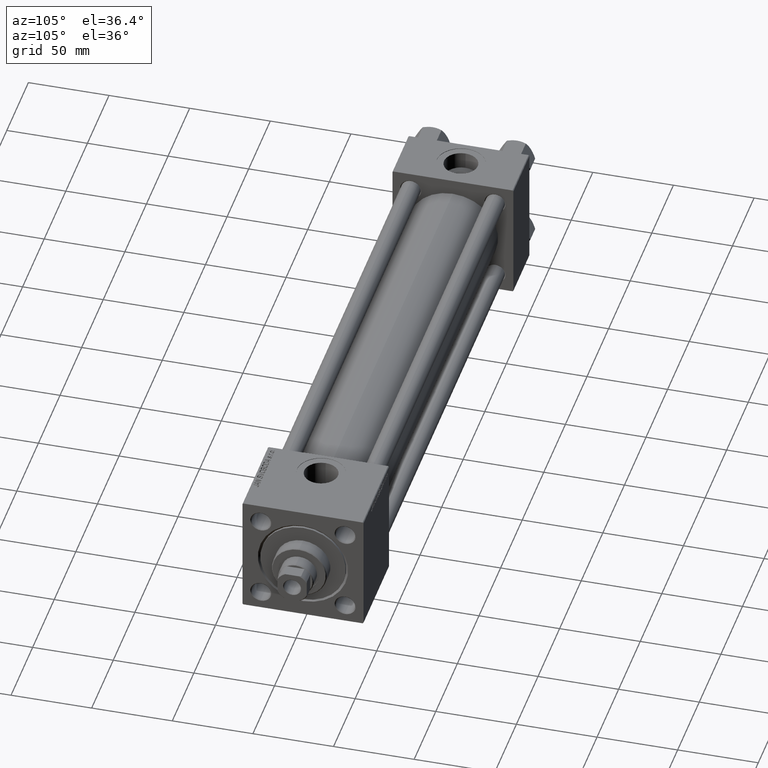
[diagram: clean part render]
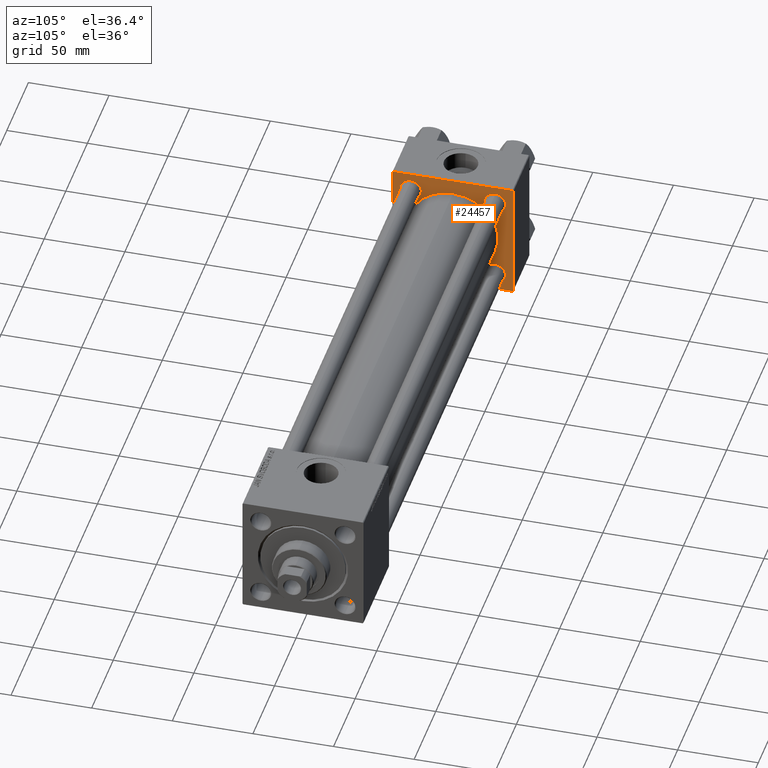
[diagram: same view with one face highlighted and labeled with its STEP entity id]
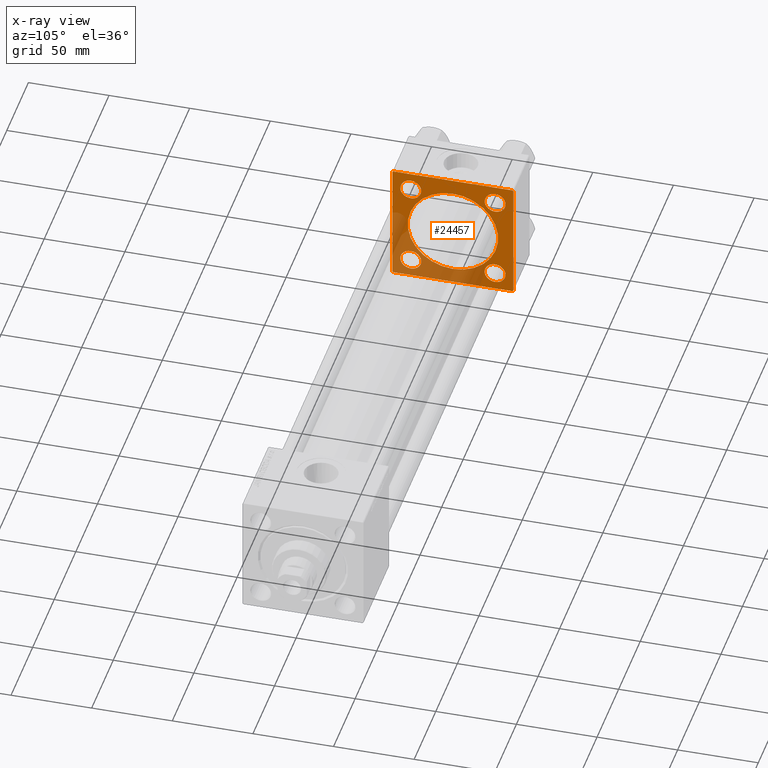
[diagram: x-ray of the same camera — body ghosted, the highlighted face saturated]
A machine part, auxiliary view. The second image highlights one B-rep face of the part: STEP entity #24457.
The next image is the same camera in x-ray: the body ghosted, the highlighted face saturated — about 35% of this face is hidden behind the body in this view.
In plain terms, the highlighted planar face has unit normal (-1, 0, 0).
Its self-contained STEP definition (entity closure, byte-faithful):
#606 = CARTESIAN_POINT ( 'NONE',  ( 37.00000000000000000, -26.14999999999999147, 19.64999999999994529 ) ) ;
#1103 = CARTESIAN_POINT ( 'NONE',  ( 37.00000000000000000, 26.14999999999999858, 26.15000000000000213 ) ) ;
#1285 = VECTOR ( 'NONE', #18020, 1000.000000000000114 ) ;
#1416 = VERTEX_POINT ( 'NONE', #9178 ) ;
#1596 = DIRECTION ( 'NONE',  ( -1.000000000000000000, 0.000000000000000000, -0.000000000000000000 ) ) ;
#2015 = EDGE_CURVE ( 'NONE', #1416, #37806, #27989, .T. ) ;
#3203 = CARTESIAN_POINT ( 'NONE',  ( 37.00000000000000000, 37.49999999999999289, -36.99999999999998579 ) ) ;
#3230 = EDGE_CURVE ( 'NONE', #26036, #39891, #6932, .T. ) ;
#3838 = CARTESIAN_POINT ( 'NONE',  ( 37.00000000000000000, 36.99999999999997868, -37.50000000000000000 ) ) ;
#3963 = AXIS2_PLACEMENT_3D ( 'NONE', #15415, #23784, #47112 ) ;
#4054 = CARTESIAN_POINT ( 'NONE',  ( 37.00000000000000000, -26.14999999999999147, 32.65000000000007674 ) ) ;
#4691 = DIRECTION ( 'NONE',  ( -0.000000000000000000, -0.7071067811865474617, -0.7071067811865474617 ) ) ;
#5216 = FACE_BOUND ( 'NONE', #41043, .T. ) ;
#5966 = CARTESIAN_POINT ( 'NONE',  ( 37.00000000000000000, 0.000000000000000000, 0.000000000000000000 ) ) ;
#6260 = DIRECTION ( 'NONE',  ( -1.000000000000000000, 0.000000000000000000, -0.000000000000000000 ) ) ;
#6673 = LINE ( 'NONE', #23143, #9299 ) ;
#6675 = ORIENTED_EDGE ( 'NONE', *, *, #46913, .T. ) ;
#6932 = CIRCLE ( 'NONE', #15852, 6.500000000000057732 ) ;
#6994 = CARTESIAN_POINT ( 'NONE',  ( 36.99999999999997868, 8.269258236473784371E-16, -28.00000000000000000 ) ) ;
#7247 = DIRECTION ( 'NONE',  ( 1.000000000000000000, -0.000000000000000000, 0.000000000000000000 ) ) ;
#7453 = DIRECTION ( 'NONE',  ( -1.000000000000000000, 0.000000000000000000, -0.000000000000000000 ) ) ;
#8074 = CIRCLE ( 'NONE', #16187, 6.500000000000119904 ) ;
#8188 = CARTESIAN_POINT ( 'NONE',  ( 37.00000000000000000, 26.14999999999999858, -26.15000000000000213 ) ) ;
#8709 = VERTEX_POINT ( 'NONE', #32899 ) ;
#8759 = AXIS2_PLACEMENT_3D ( 'NONE', #36971, #6260, #18149 ) ;
#8943 = ORIENTED_EDGE ( 'NONE', *, *, #2015, .T. ) ;
#9178 = CARTESIAN_POINT ( 'NONE',  ( 37.00000000000000000, 26.14999999999999858, -32.65000000000011937 ) ) ;
#9207 = ORIENTED_EDGE ( 'NONE', *, *, #46489, .T. ) ;
#9276 = FACE_BOUND ( 'NONE', #24774, .T. ) ;
#9299 = VECTOR ( 'NONE', #33813, 1000.000000000000000 ) ;
#9596 = CIRCLE ( 'NONE', #14461, 28.00000000000000000 ) ;
#9935 = ORIENTED_EDGE ( 'NONE', *, *, #34379, .T. ) ;
#10269 = VERTEX_POINT ( 'NONE', #23363 ) ;
#10638 = AXIS2_PLACEMENT_3D ( 'NONE', #45746, #7453, #46006 ) ;
#10677 = CARTESIAN_POINT ( 'NONE',  ( 37.00000000000000000, 36.99999999999999289, 37.50000000000000000 ) ) ;
#10898 = CARTESIAN_POINT ( 'NONE',  ( 37.00000000000000000, -26.14999999999999147, -32.65000000000006963 ) ) ;
#11398 = AXIS2_PLACEMENT_3D ( 'NONE', #24240, #25233, #17374 ) ;
#11760 = VERTEX_POINT ( 'NONE', #4054 ) ;
#11790 = CARTESIAN_POINT ( 'NONE',  ( 37.00000000000000000, 26.14999999999999858, -19.64999999999988844 ) ) ;
#11870 = ORIENTED_EDGE ( 'NONE', *, *, #31811, .F. ) ;
#12331 = VERTEX_POINT ( 'NONE', #606 ) ;
#12726 = EDGE_CURVE ( 'NONE', #12331, #11760, #29001, .T. ) ;
#12812 = LINE ( 'NONE', #31578, #19402 ) ;
#13056 = ORIENTED_EDGE ( 'NONE', *, *, #30795, .T. ) ;
#13109 = EDGE_CURVE ( 'NONE', #11760, #12331, #46004, .T. ) ;
#13265 = VERTEX_POINT ( 'NONE', #6994 ) ;
#13294 = EDGE_CURVE ( 'NONE', #13265, #36116, #9596, .T. ) ;
#13333 = PLANE ( 'NONE',  #48383 ) ;
#13500 = ORIENTED_EDGE ( 'NONE', *, *, #13294, .F. ) ;
#13592 = CARTESIAN_POINT ( 'NONE',  ( 37.00000000000000000, 37.49999999999999289, -36.99999999999998579 ) ) ;
#13625 = LINE ( 'NONE', #24538, #42136 ) ;
#14352 = EDGE_CURVE ( 'NONE', #37806, #1416, #32341, .T. ) ;
#14461 = AXIS2_PLACEMENT_3D ( 'NONE', #22215, #7247, #18909 ) ;
#14584 = CARTESIAN_POINT ( 'NONE',  ( 37.00000000000000000, -37.00000000000002132, -37.50000000000000711 ) ) ;
#15349 = ORIENTED_EDGE ( 'NONE', *, *, #34684, .F. ) ;
#15415 = CARTESIAN_POINT ( 'NONE',  ( 37.00000000000000000, 26.14999999999999858, -26.15000000000000213 ) ) ;
#15852 = AXIS2_PLACEMENT_3D ( 'NONE', #33063, #1596, #36639 ) ;
#15922 = CARTESIAN_POINT ( 'NONE',  ( 37.00000000000000000, -37.50000000000000000, -37.00000000000003553 ) ) ;
#16187 = AXIS2_PLACEMENT_3D ( 'NONE', #1103, #23965, #20674 ) ;
#17374 = DIRECTION ( 'NONE',  ( 0.000000000000000000, 0.000000000000000000, 1.000000000000000000 ) ) ;
#18020 = DIRECTION ( 'NONE',  ( 0.000000000000000000, -0.7071067811865474617, 0.7071067811865474617 ) ) ;
#18149 = DIRECTION ( 'NONE',  ( 0.000000000000000000, 0.000000000000000000, 1.000000000000000000 ) ) ;
#18288 = CARTESIAN_POINT ( 'NONE',  ( 37.00000000000000000, 37.49999999999999289, 37.00000000000000000 ) ) ;
#18909 = DIRECTION ( 'NONE',  ( 0.000000000000000000, 0.000000000000000000, 1.000000000000000000 ) ) ;
#19198 = CARTESIAN_POINT ( 'NONE',  ( 37.00000000000000000, -37.50000000000000711, 36.99999999999999289 ) ) ;
#19238 = LINE ( 'NONE', #46622, #22442 ) ;
#19402 = VECTOR ( 'NONE', #4691, 1000.000000000000114 ) ;
#20674 = DIRECTION ( 'NONE',  ( 0.000000000000000000, 0.000000000000000000, 1.000000000000000000 ) ) ;
#20901 = EDGE_CURVE ( 'NONE', #45098, #24243, #19238, .T. ) ;
#20958 = FACE_BOUND ( 'NONE', #24299, .T. ) ;
#21208 = DIRECTION ( 'NONE',  ( -1.000000000000000000, 0.000000000000000000, -0.000000000000000000 ) ) ;
#21455 = LINE ( 'NONE', #13592, #25238 ) ;
#22193 = EDGE_LOOP ( 'NONE', ( #11870, #24843, #15349, #6675, #9935, #13056, #48374, #9207 ) ) ;
#22215 = CARTESIAN_POINT ( 'NONE',  ( 36.99999999999997868, -2.602085213965210642E-15, 0.000000000000000000 ) ) ;
#22442 = VECTOR ( 'NONE', #31665, 1000.000000000000000 ) ;
#22617 = LINE ( 'NONE', #30463, #25204 ) ;
#23143 = CARTESIAN_POINT ( 'NONE',  ( 37.00000000000000000, -37.00000000000002132, -37.50000000000000711 ) ) ;
#23363 = CARTESIAN_POINT ( 'NONE',  ( 37.00000000000000000, 26.14999999999999858, 32.65000000000012648 ) ) ;
#23784 = DIRECTION ( 'NONE',  ( -1.000000000000000000, 0.000000000000000000, -0.000000000000000000 ) ) ;
#23965 = DIRECTION ( 'NONE',  ( -1.000000000000000000, 0.000000000000000000, -0.000000000000000000 ) ) ;
#24240 = CARTESIAN_POINT ( 'NONE',  ( 37.00000000000000000, -26.14999999999999147, -26.15000000000000924 ) ) ;
#24243 = VERTEX_POINT ( 'NONE', #15922 ) ;
#24290 = DIRECTION ( 'NONE',  ( 0.000000000000000000, -1.000000000000000000, -9.251858538542972814E-17 ) ) ;
#24299 = EDGE_LOOP ( 'NONE', ( #33167, #47408 ) ) ;
#24457 = ADVANCED_FACE ( 'NONE', ( #9276, #5216, #20958, #39971, #47570, #29052 ), #13333, .F. ) ;
#24538 = CARTESIAN_POINT ( 'NONE',  ( 37.00000000000000000, 37.49999999999999289, -37.50000000000000000 ) ) ;
#24774 = EDGE_LOOP ( 'NONE', ( #45900, #33939 ) ) ;
#24843 = ORIENTED_EDGE ( 'NONE', *, *, #39061, .T. ) ;
#24888 = CARTESIAN_POINT ( 'NONE',  ( 36.99999999999997868, -2.602085213965210642E-15, 28.00000000000000000 ) ) ;
#25204 = VECTOR ( 'NONE', #49737, 1000.000000000000000 ) ;
#25233 = DIRECTION ( 'NONE',  ( -1.000000000000000000, 0.000000000000000000, -0.000000000000000000 ) ) ;
#25238 = VECTOR ( 'NONE', #40728, 1000.000000000000114 ) ;
#25758 = AXIS2_PLACEMENT_3D ( 'NONE', #28156, #44129, #32220 ) ;
#25855 = LINE ( 'NONE', #29904, #35747 ) ;
#26036 = VERTEX_POINT ( 'NONE', #40357 ) ;
#26381 = LINE ( 'NONE', #10677, #1285 ) ;
#26415 = CARTESIAN_POINT ( 'NONE',  ( 37.00000000000000000, 36.99999999999999289, 37.50000000000000000 ) ) ;
#26440 = VERTEX_POINT ( 'NONE', #3203 ) ;
#27964 = DIRECTION ( 'NONE',  ( -1.000000000000000000, 0.000000000000000000, -0.000000000000000000 ) ) ;
#27989 = CIRCLE ( 'NONE', #32851, 6.500000000000113687 ) ;
#28156 = CARTESIAN_POINT ( 'NONE',  ( 37.00000000000000000, -26.14999999999999147, 26.15000000000000924 ) ) ;
#29001 = CIRCLE ( 'NONE', #25758, 6.500000000000064837 ) ;
#29052 = FACE_OUTER_BOUND ( 'NONE', #22193, .T. ) ;
#29904 = CARTESIAN_POINT ( 'NONE',  ( 37.00000000000000000, 37.49999999999999289, 37.50000000000000000 ) ) ;
#30377 = ORIENTED_EDGE ( 'NONE', *, *, #14352, .T. ) ;
#30463 = CARTESIAN_POINT ( 'NONE',  ( 37.00000000000000000, 37.49999999999999289, 37.50000000000000000 ) ) ;
#30732 = EDGE_CURVE ( 'NONE', #10269, #8709, #8074, .T. ) ;
#30795 = EDGE_CURVE ( 'NONE', #36901, #45098, #12812, .T. ) ;
#31578 = CARTESIAN_POINT ( 'NONE',  ( 37.00000000000000000, -37.50000000000000711, 36.99999999999999289 ) ) ;
#31665 = DIRECTION ( 'NONE',  ( 0.000000000000000000, 9.251858538542971581E-17, -1.000000000000000000 ) ) ;
#31811 = EDGE_CURVE ( 'NONE', #41604, #36894, #13625, .T. ) ;
#32220 = DIRECTION ( 'NONE',  ( 0.000000000000000000, 0.000000000000000000, 1.000000000000000000 ) ) ;
#32341 = CIRCLE ( 'NONE', #3963, 6.500000000000113687 ) ;
#32851 = AXIS2_PLACEMENT_3D ( 'NONE', #8188, #27964, #39142 ) ;
#32899 = CARTESIAN_POINT ( 'NONE',  ( 37.00000000000000000, 26.14999999999999858, 19.64999999999988489 ) ) ;
#33063 = CARTESIAN_POINT ( 'NONE',  ( 37.00000000000000000, -26.14999999999999147, -26.15000000000000924 ) ) ;
#33109 = DIRECTION ( 'NONE',  ( -0.000000000000000000, 0.000000000000000000, 1.000000000000000000 ) ) ;
#33167 = ORIENTED_EDGE ( 'NONE', *, *, #12726, .T. ) ;
#33257 = EDGE_CURVE ( 'NONE', #39891, #26036, #46226, .T. ) ;
#33813 = DIRECTION ( 'NONE',  ( 0.000000000000000000, 0.7071067811865524577, -0.7071067811865426878 ) ) ;
#33939 = ORIENTED_EDGE ( 'NONE', *, *, #3230, .T. ) ;
#34379 = EDGE_CURVE ( 'NONE', #39580, #36901, #22617, .T. ) ;
#34684 = EDGE_CURVE ( 'NONE', #47338, #26440, #25855, .T. ) ;
#34832 = CARTESIAN_POINT ( 'NONE',  ( 36.99999999999997868, -2.602085213965210642E-15, 0.000000000000000000 ) ) ;
#35330 = EDGE_CURVE ( 'NONE', #36116, #13265, #40632, .T. ) ;
#35747 = VECTOR ( 'NONE', #41326, 1000.000000000000000 ) ;
#36116 = VERTEX_POINT ( 'NONE', #24888 ) ;
#36589 = CIRCLE ( 'NONE', #10638, 6.500000000000119904 ) ;
#36639 = DIRECTION ( 'NONE',  ( 0.000000000000000000, 0.000000000000000000, 1.000000000000000000 ) ) ;
#36894 = VERTEX_POINT ( 'NONE', #14584 ) ;
#36901 = VERTEX_POINT ( 'NONE', #46025 ) ;
#36971 = CARTESIAN_POINT ( 'NONE',  ( 37.00000000000000000, -26.14999999999999147, 26.15000000000000924 ) ) ;
#37806 = VERTEX_POINT ( 'NONE', #11790 ) ;
#38280 = EDGE_CURVE ( 'NONE', #8709, #10269, #36589, .T. ) ;
#38636 = DIRECTION ( 'NONE',  ( 1.000000000000000000, -0.000000000000000000, 0.000000000000000000 ) ) ;
#38770 = ORIENTED_EDGE ( 'NONE', *, *, #30732, .T. ) ;
#39061 = EDGE_CURVE ( 'NONE', #41604, #26440, #21455, .T. ) ;
#39142 = DIRECTION ( 'NONE',  ( 0.000000000000000000, 0.000000000000000000, 1.000000000000000000 ) ) ;
#39580 = VERTEX_POINT ( 'NONE', #26415 ) ;
#39720 = EDGE_LOOP ( 'NONE', ( #48663, #38770 ) ) ;
#39891 = VERTEX_POINT ( 'NONE', #10898 ) ;
#39971 = FACE_BOUND ( 'NONE', #39720, .T. ) ;
#40357 = CARTESIAN_POINT ( 'NONE',  ( 37.00000000000000000, -26.14999999999999147, -19.64999999999995239 ) ) ;
#40632 = CIRCLE ( 'NONE', #41441, 28.00000000000000000 ) ;
#40728 = DIRECTION ( 'NONE',  ( -0.000000000000000000, 0.7071067811865474617, 0.7071067811865474617 ) ) ;
#41043 = EDGE_LOOP ( 'NONE', ( #8943, #30377 ) ) ;
#41326 = DIRECTION ( 'NONE',  ( 0.000000000000000000, 0.000000000000000000, -1.000000000000000000 ) ) ;
#41441 = AXIS2_PLACEMENT_3D ( 'NONE', #34832, #38636, #50040 ) ;
#41468 = EDGE_LOOP ( 'NONE', ( #41995, #13500 ) ) ;
#41604 = VERTEX_POINT ( 'NONE', #3838 ) ;
#41995 = ORIENTED_EDGE ( 'NONE', *, *, #35330, .F. ) ;
#42136 = VECTOR ( 'NONE', #24290, 1000.000000000000000 ) ;
#44129 = DIRECTION ( 'NONE',  ( -1.000000000000000000, 0.000000000000000000, -0.000000000000000000 ) ) ;
#45098 = VERTEX_POINT ( 'NONE', #19198 ) ;
#45746 = CARTESIAN_POINT ( 'NONE',  ( 37.00000000000000000, 26.14999999999999858, 26.15000000000000213 ) ) ;
#45900 = ORIENTED_EDGE ( 'NONE', *, *, #33257, .T. ) ;
#46004 = CIRCLE ( 'NONE', #8759, 6.500000000000064837 ) ;
#46006 = DIRECTION ( 'NONE',  ( 0.000000000000000000, 0.000000000000000000, 1.000000000000000000 ) ) ;
#46025 = CARTESIAN_POINT ( 'NONE',  ( 37.00000000000000000, -37.00000000000000711, 37.49999999999999289 ) ) ;
#46226 = CIRCLE ( 'NONE', #11398, 6.500000000000057732 ) ;
#46489 = EDGE_CURVE ( 'NONE', #24243, #36894, #6673, .T. ) ;
#46622 = CARTESIAN_POINT ( 'NONE',  ( 37.00000000000000000, -37.50000000000000711, 37.49999999999999289 ) ) ;
#46913 = EDGE_CURVE ( 'NONE', #47338, #39580, #26381, .T. ) ;
#47112 = DIRECTION ( 'NONE',  ( 0.000000000000000000, 0.000000000000000000, 1.000000000000000000 ) ) ;
#47338 = VERTEX_POINT ( 'NONE', #18288 ) ;
#47408 = ORIENTED_EDGE ( 'NONE', *, *, #13109, .T. ) ;
#47570 = FACE_BOUND ( 'NONE', #41468, .T. ) ;
#48374 = ORIENTED_EDGE ( 'NONE', *, *, #20901, .T. ) ;
#48383 = AXIS2_PLACEMENT_3D ( 'NONE', #5966, #21208, #33109 ) ;
#48663 = ORIENTED_EDGE ( 'NONE', *, *, #38280, .T. ) ;
#49737 = DIRECTION ( 'NONE',  ( 0.000000000000000000, -1.000000000000000000, -9.251858538542971581E-17 ) ) ;
#50040 = DIRECTION ( 'NONE',  ( 0.000000000000000000, 0.000000000000000000, 1.000000000000000000 ) ) ;